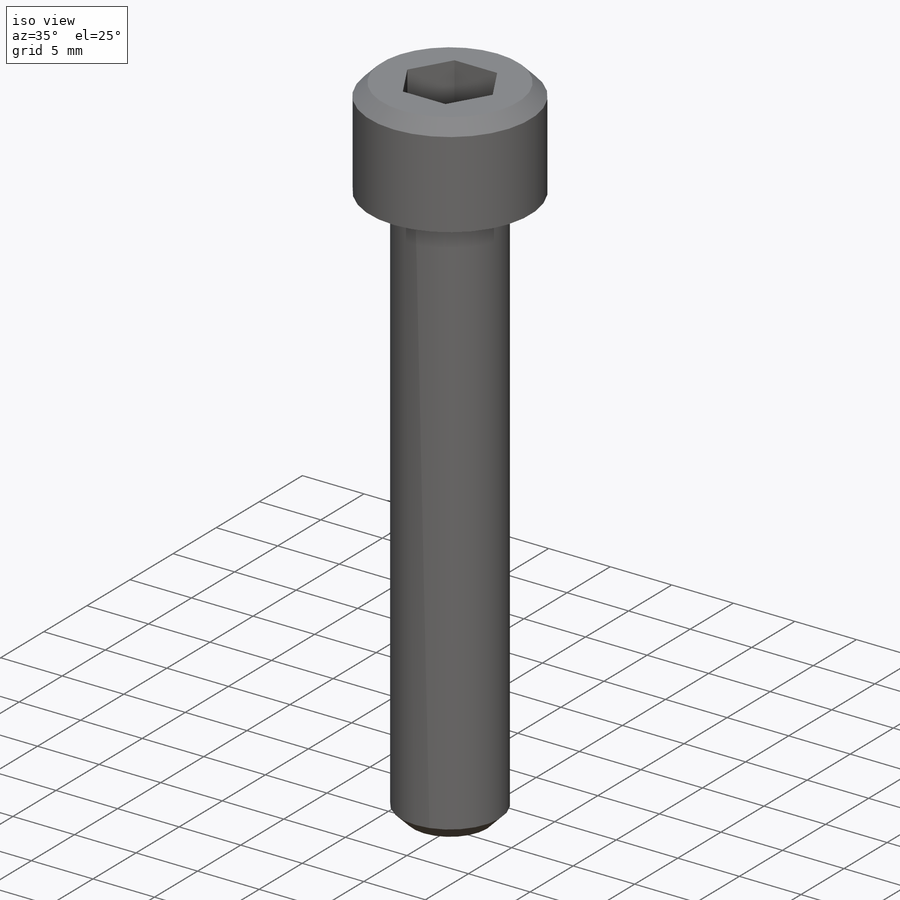
[diagram: iso view]
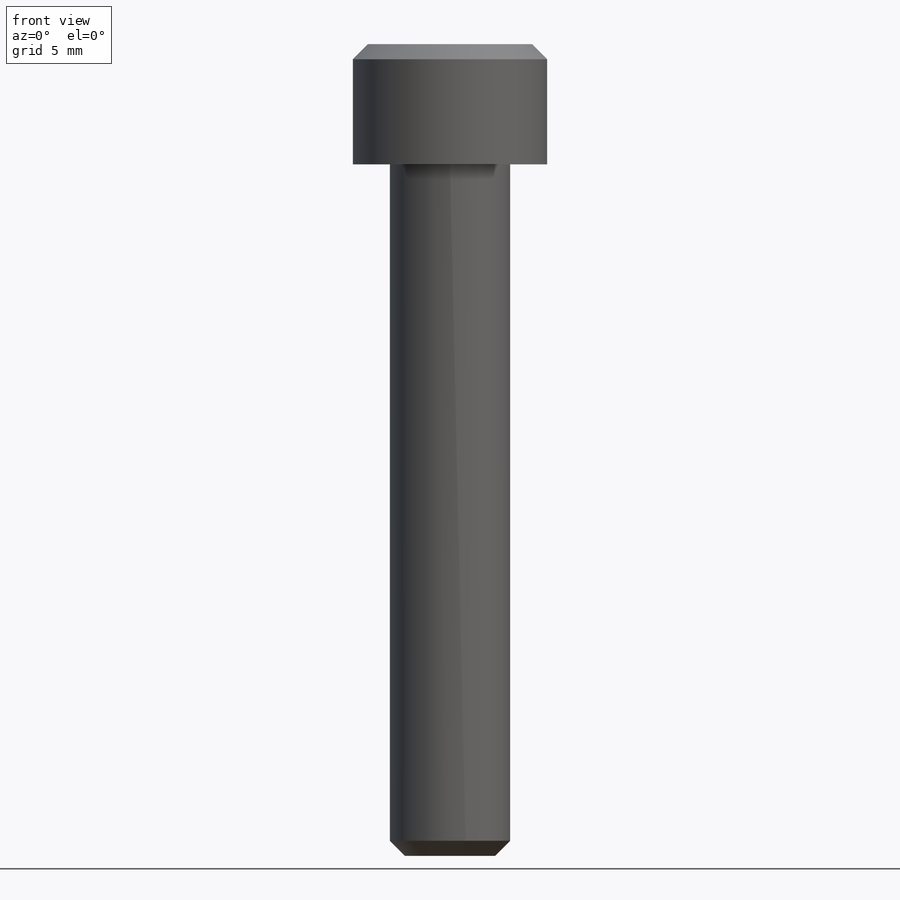
[diagram: front view]
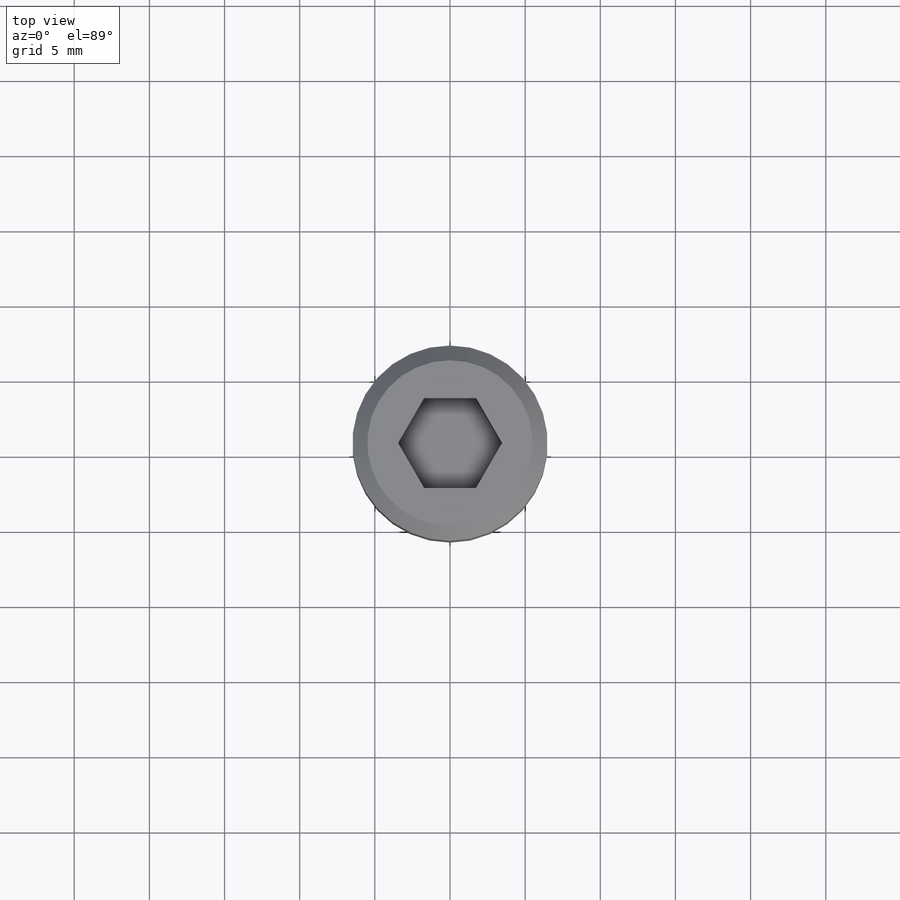
[diagram: top view]
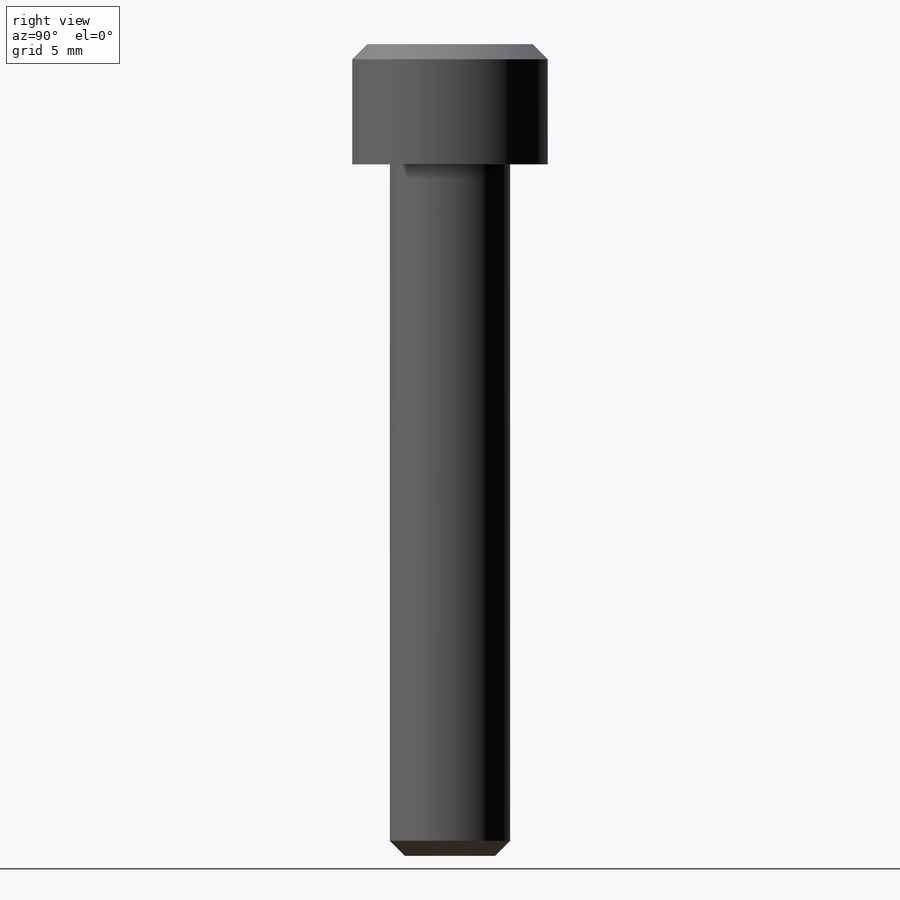
[diagram: right view]
SOLIDWORKS PART (.sldprt)
format: sldprt  version: not decoded by parser v0  size: 131,584 bytes
history: native  units: mm
features: sketch x3, extrude x2, material x1, cut_extrude x1, chamfer x1 (+12 scaffold rows collapsed)
feature tree (20):
  scaffold x12  (default folders/planes/origin — collapsed)
  material  "Material <not specified>"
  sketch  "Sketch2"  dims[D1=8.0mm]
  extrude  "Boss-Extrude1"  Depth=46mm
  sketch  "Sketch3"  dims[D1=13.0mm]
  extrude  "Boss-Extrude2"  Depth=8mm
  sketch  "Sketch4"  dims[D1=6.0mm]
  cut_extrude  "Cut-Extrude1"  Depth=6mm
  chamfer  "Chamfer1"  Distance=1mm Angle=45deg
decode coverage: 7 of 7 modeling features carry decoded parameters
note: suppression state not decoded; provenance and decode notes live in map.json
